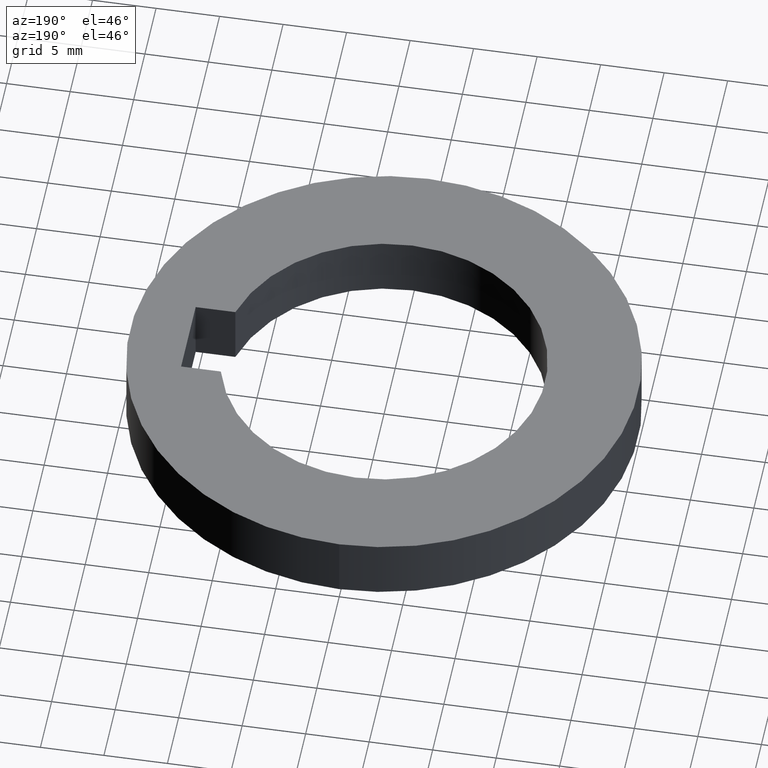
[diagram: clean part render]
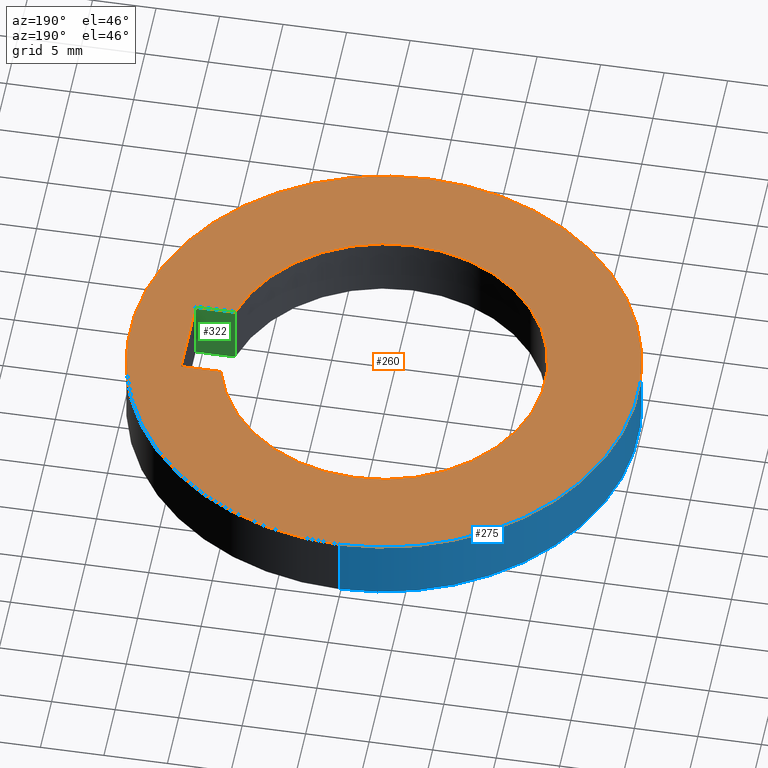
[diagram: same view with three faces highlighted in distinct colors, each labeled with its STEP entity id]
A machine part, auxiliary view with three faces highlighted in distinct colors.
Their STEP definitions:

[orange] entity #260 — the highlighted planar face has unit normal (0, 0, -1).
#32=CARTESIAN_POINT('',(0.E0,1.227708416145E-14,0.E0));
#33=DIRECTION('',(0.E0,0.E0,-1.E0));
#34=DIRECTION('',(0.E0,-1.E0,0.E0));
#35=AXIS2_PLACEMENT_3D('',#32,#33,#34);
#40=CARTESIAN_POINT('',(0.E0,1.227708416145E-14,0.E0));
#41=DIRECTION('',(0.E0,0.E0,-1.E0));
#42=DIRECTION('',(0.E0,1.E0,0.E0));
#43=AXIS2_PLACEMENT_3D('',#40,#41,#42);
#48=CARTESIAN_POINT('',(0.E0,1.227708416145E-14,0.E0));
#49=DIRECTION('',(0.E0,0.E0,1.E0));
#50=DIRECTION('',(9.667017994318E-1,2.559055118110E-1,0.E0));
#51=AXIS2_PLACEMENT_3D('',#48,#49,#50);
#56=CARTESIAN_POINT('',(0.E0,1.227708416145E-14,0.E0));
#57=DIRECTION('',(0.E0,0.E0,1.E0));
#58=DIRECTION('',(0.E0,1.E0,0.E0));
#59=AXIS2_PLACEMENT_3D('',#56,#57,#58);
#64=CARTESIAN_POINT('',(0.E0,1.227708416145E-14,0.E0));
#65=DIRECTION('',(0.E0,0.E0,1.E0));
#66=DIRECTION('',(0.E0,-1.E0,0.E0));
#67=AXIS2_PLACEMENT_3D('',#64,#65,#66);
#154=DIRECTION('',(-1.E0,-1.121995032334E-13,0.E0));
#155=VECTOR('',#154,3.122887147217E0);
#156=CARTESIAN_POINT('',(1.54E1,-3.25E0,0.E0));
#157=LINE('',#156,#155);
#168=DIRECTION('',(0.E0,-1.E0,0.E0));
#169=VECTOR('',#168,6.5E0);
#170=CARTESIAN_POINT('',(1.54E1,3.25E0,0.E0));
#171=LINE('',#170,#169);
#175=DIRECTION('',(1.E0,-1.129105267013E-13,0.E0));
#176=VECTOR('',#175,3.122887147217E0);
#177=CARTESIAN_POINT('',(1.227711285278E1,3.25E0,0.E0));
#178=LINE('',#177,#176);
#182=CARTESIAN_POINT('',(0.E0,-1.27E1,0.E0));
#183=CARTESIAN_POINT('',(1.227711285278E1,-3.25E0,0.E0));
#184=VERTEX_POINT('',#182);
#185=VERTEX_POINT('',#183);
#186=CARTESIAN_POINT('',(0.E0,1.27E1,0.E0));
#187=VERTEX_POINT('',#186);
#188=CARTESIAN_POINT('',(1.227711285278E1,3.25E0,0.E0));
#189=VERTEX_POINT('',#188);
#198=CARTESIAN_POINT('',(0.E0,-2.E1,0.E0));
#199=CARTESIAN_POINT('',(0.E0,2.E1,0.E0));
#200=VERTEX_POINT('',#198);
#201=VERTEX_POINT('',#199);
#202=CARTESIAN_POINT('',(1.54E1,-3.25E0,0.E0));
#203=VERTEX_POINT('',#202);
#204=CARTESIAN_POINT('',(1.54E1,3.25E0,0.E0));
#205=VERTEX_POINT('',#204);
#238=CARTESIAN_POINT('',(0.E0,1.224646799147E-14,0.E0));
#239=DIRECTION('',(0.E0,0.E0,-1.E0));
#240=DIRECTION('',(0.E0,-1.E0,0.E0));
#241=AXIS2_PLACEMENT_3D('',#238,#239,#240);
#242=PLANE('',#241);
#244=ORIENTED_EDGE('',*,*,#243,.T.);
#246=ORIENTED_EDGE('',*,*,#245,.T.);
#247=EDGE_LOOP('',(#244,#246));
#248=FACE_OUTER_BOUND('',#247,.F.);
#250=ORIENTED_EDGE('',*,*,#249,.F.);
#252=ORIENTED_EDGE('',*,*,#251,.F.);
#254=ORIENTED_EDGE('',*,*,#253,.F.);
#255=ORIENTED_EDGE('',*,*,#223,.T.);
#256=ORIENTED_EDGE('',*,*,#221,.T.);
#257=ORIENTED_EDGE('',*,*,#219,.T.);
#258=EDGE_LOOP('',(#250,#252,#254,#255,#256,#257));
#259=FACE_BOUND('',#258,.F.);
#36=CIRCLE('',#35,2.E1);
#44=CIRCLE('',#43,2.E1);
#52=CIRCLE('',#51,1.27E1);
#60=CIRCLE('',#59,1.27E1);
#68=CIRCLE('',#67,1.27E1);
#219=EDGE_CURVE('',#184,#185,#68,.T.);
#221=EDGE_CURVE('',#187,#184,#60,.T.);
#223=EDGE_CURVE('',#189,#187,#52,.T.);
#243=EDGE_CURVE('',#200,#201,#36,.T.);
#245=EDGE_CURVE('',#201,#200,#44,.T.);
#249=EDGE_CURVE('',#203,#185,#157,.T.);
#251=EDGE_CURVE('',#205,#203,#171,.T.);
#253=EDGE_CURVE('',#189,#205,#178,.T.);
#260=ADVANCED_FACE('',(#248,#259),#242,.F.);

[blue] entity #275 — the highlighted cylindrical surface (partial cylindrical patch) has radius 20 mm, axis along (0, 0, -1).
#32=CARTESIAN_POINT('',(0.E0,1.227708416145E-14,0.E0));
#33=DIRECTION('',(0.E0,0.E0,-1.E0));
#34=DIRECTION('',(0.E0,-1.E0,0.E0));
#35=AXIS2_PLACEMENT_3D('',#32,#33,#34);
#72=DIRECTION('',(0.E0,0.E0,-1.E0));
#73=VECTOR('',#72,5.E0);
#74=CARTESIAN_POINT('',(0.E0,-2.E1,0.E0));
#75=LINE('',#74,#73);
#79=DIRECTION('',(0.E0,0.E0,-1.E0));
#80=VECTOR('',#79,5.E0);
#81=CARTESIAN_POINT('',(0.E0,2.E1,0.E0));
#82=LINE('',#81,#80);
#94=CARTESIAN_POINT('',(0.E0,1.227708416145E-14,-5.E0));
#95=DIRECTION('',(0.E0,0.E0,1.E0));
#96=DIRECTION('',(0.E0,1.E0,0.E0));
#97=AXIS2_PLACEMENT_3D('',#94,#95,#96);
#198=CARTESIAN_POINT('',(0.E0,-2.E1,0.E0));
#199=CARTESIAN_POINT('',(0.E0,2.E1,0.E0));
#200=VERTEX_POINT('',#198);
#201=VERTEX_POINT('',#199);
#206=CARTESIAN_POINT('',(0.E0,2.E1,-5.E0));
#207=VERTEX_POINT('',#206);
#208=CARTESIAN_POINT('',(0.E0,-2.E1,-5.E0));
#209=VERTEX_POINT('',#208);
#261=CARTESIAN_POINT('',(0.E0,1.227708416145E-14,2.5E-1));
#262=DIRECTION('',(0.E0,0.E0,-1.E0));
#263=DIRECTION('',(0.E0,-1.E0,0.E0));
#264=AXIS2_PLACEMENT_3D('',#261,#262,#263);
#265=CYLINDRICAL_SURFACE('',#264,2.E1);
#267=ORIENTED_EDGE('',*,*,#266,.F.);
#268=ORIENTED_EDGE('',*,*,#243,.F.);
#270=ORIENTED_EDGE('',*,*,#269,.T.);
#272=ORIENTED_EDGE('',*,*,#271,.F.);
#273=EDGE_LOOP('',(#267,#268,#270,#272));
#274=FACE_OUTER_BOUND('',#273,.F.);
#36=CIRCLE('',#35,2.E1);
#98=CIRCLE('',#97,2.E1);
#243=EDGE_CURVE('',#200,#201,#36,.T.);
#266=EDGE_CURVE('',#201,#207,#82,.T.);
#269=EDGE_CURVE('',#200,#209,#75,.T.);
#271=EDGE_CURVE('',#207,#209,#98,.T.);
#275=ADVANCED_FACE('',(#274),#265,.T.);

[green] entity #322 — the highlighted planar face has unit normal (0, -1, 0).
#25=DIRECTION('',(0.E0,0.E0,1.E0));
#26=VECTOR('',#25,5.E0);
#27=CARTESIAN_POINT('',(1.227711285278E1,-3.25E0,-5.E0));
#28=LINE('',#27,#26);
#102=DIRECTION('',(-1.E0,-1.123417079270E-13,0.E0));
#103=VECTOR('',#102,3.122887147217E0);
#104=CARTESIAN_POINT('',(1.54E1,-3.25E0,-5.E0));
#105=LINE('',#104,#103);
#147=DIRECTION('',(0.E0,0.E0,1.E0));
#148=VECTOR('',#147,5.E0);
#149=CARTESIAN_POINT('',(1.54E1,-3.25E0,-5.E0));
#150=LINE('',#149,#148);
#154=DIRECTION('',(-1.E0,-1.121995032334E-13,0.E0));
#155=VECTOR('',#154,3.122887147217E0);
#156=CARTESIAN_POINT('',(1.54E1,-3.25E0,0.E0));
#157=LINE('',#156,#155);
#183=CARTESIAN_POINT('',(1.227711285278E1,-3.25E0,0.E0));
#185=VERTEX_POINT('',#183);
#196=CARTESIAN_POINT('',(1.227711285278E1,-3.25E0,-5.E0));
#197=VERTEX_POINT('',#196);
#202=CARTESIAN_POINT('',(1.54E1,-3.25E0,0.E0));
#203=VERTEX_POINT('',#202);
#210=CARTESIAN_POINT('',(1.54E1,-3.25E0,-5.E0));
#211=VERTEX_POINT('',#210);
#310=CARTESIAN_POINT('',(8.9E0,-3.25E0,0.E0));
#311=DIRECTION('',(0.E0,-1.E0,0.E0));
#312=DIRECTION('',(1.E0,0.E0,0.E0));
#313=AXIS2_PLACEMENT_3D('',#310,#311,#312);
#314=PLANE('',#313);
#315=ORIENTED_EDGE('',*,*,#233,.F.);
#316=ORIENTED_EDGE('',*,*,#298,.F.);
#318=ORIENTED_EDGE('',*,*,#317,.T.);
#319=ORIENTED_EDGE('',*,*,#249,.T.);
#320=EDGE_LOOP('',(#315,#316,#318,#319));
#321=FACE_OUTER_BOUND('',#320,.F.);
#233=EDGE_CURVE('',#197,#185,#28,.T.);
#249=EDGE_CURVE('',#203,#185,#157,.T.);
#298=EDGE_CURVE('',#211,#197,#105,.T.);
#317=EDGE_CURVE('',#211,#203,#150,.T.);
#322=ADVANCED_FACE('',(#321),#314,.F.);